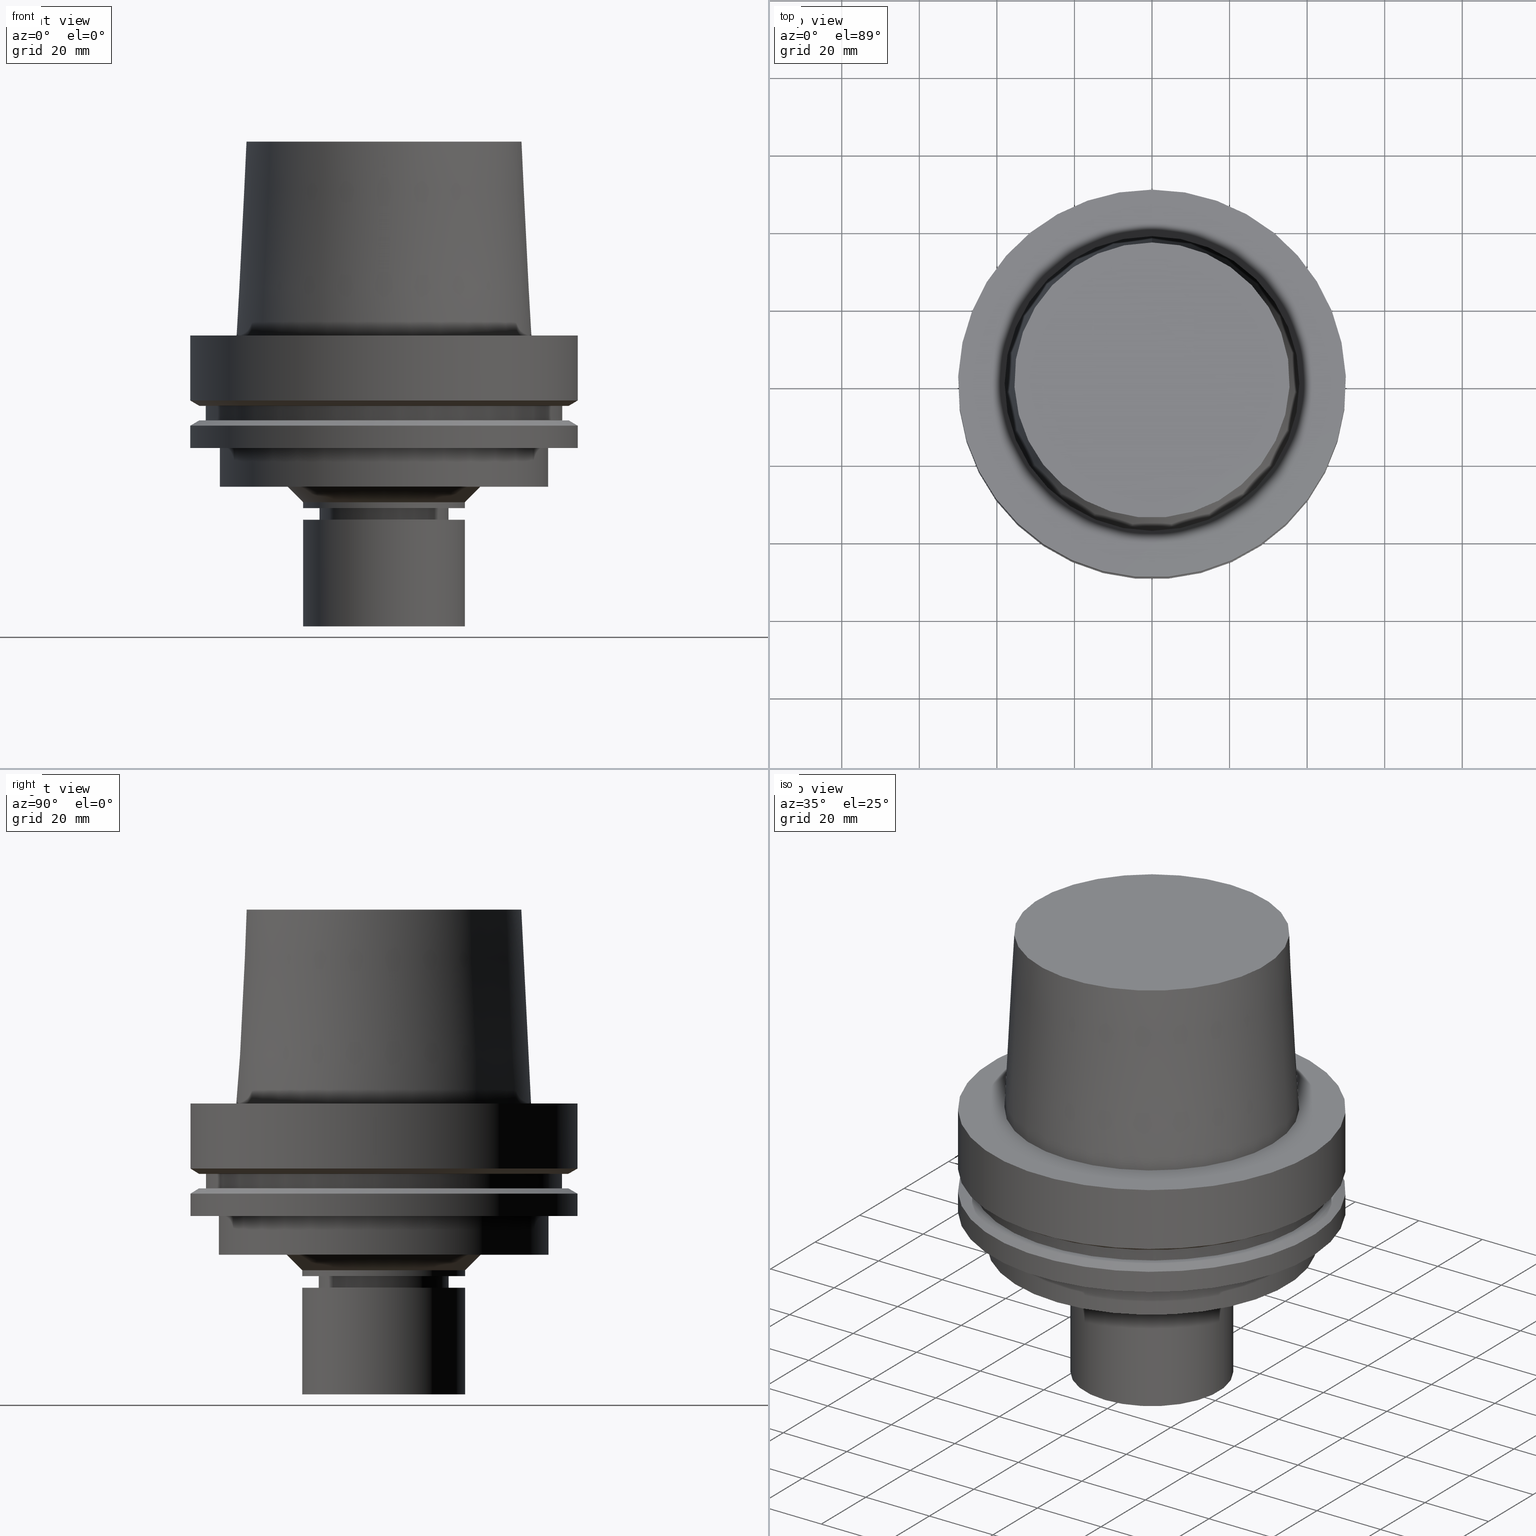
[diagram: canonical four-view strip — front | top / right | iso, engineering-drawing reading convention]
A machine part, canonical four-view strip (front | top / right | iso — engineering-drawing reading convention). The complete STEP part file that produces these views, byte-faithful:
ISO-10303-21;
HEADER;
FILE_DESCRIPTION((''),'1');
FILE_NAME('U:/Translate/02_3D_Field-HP\X2\FF71FF6FFF8CFF9F5916\X0\2013/02_Step_Field-HP\X2\FF71FF6FFF8CFF9F5916\X0\2013/HSK-A100-MEGAER25-75NL.stp','2016-06-22T01:22:53',(''),(''),'Spatial Interop R21 SP3','Kubotek KeyCreator 2011 V10.0.2 (22737)',' ');
FILE_SCHEMA(('automotive_design'));
ENDSEC;
DATA;
#1=MECHANICAL_DESIGN_GEOMETRIC_PRESENTATION_REPRESENTATION(' ',(#14,#15,#16,#17,#18,#19,#20,#21,#22,#23,#24,#25,#26,#27,#28,#29,#30,#31,#32,#33,#34,#35,#36,#37,#38,#39,#40,#41,#42,#43,#44,#45,#46,#47,#48,#49,#50,#51,#52,#53,#54,#55,#56,#57,#58,#59,#60,#61),#10);
#2=PRODUCT_DEFINITION_CONTEXT('',#62,'design');
#3=APPLICATION_PROTOCOL_DEFINITION('INTERNATIONAL STANDARD','automotive_design',1994,#62);
#4=PRODUCT_CATEGORY_RELATIONSHIP('NONE','NONE',#63,#64);
#5=SHAPE_DEFINITION_REPRESENTATION(#65,#66);
#6=PRODUCT_DEFINITION_CONTEXT('',#67,'design');
#7=APPLICATION_PROTOCOL_DEFINITION('INTERNATIONAL STANDARD','automotive_design',1994,#67);
#8=PRODUCT_CATEGORY_RELATIONSHIP('NONE','NONE',#68,#69);
#9=SHAPE_DEFINITION_REPRESENTATION(#70,#71);
#10= (GEOMETRIC_REPRESENTATION_CONTEXT(3)GLOBAL_UNCERTAINTY_ASSIGNED_CONTEXT((#74))GLOBAL_UNIT_ASSIGNED_CONTEXT((#76,#77,#78))REPRESENTATION_CONTEXT('NONE','WORKSPACE'));
#14=STYLED_ITEM('',(#80),#81);
#15=STYLED_ITEM('',(#82),#83);
#16=STYLED_ITEM('',(#84,#85),#86);
#17=STYLED_ITEM('',(#87,#88),#89);
#18=STYLED_ITEM('',(#90),#91);
#19=STYLED_ITEM('',(#92),#93);
#20=STYLED_ITEM('',(#94),#95);
#21=STYLED_ITEM('',(#96),#97);
#22=STYLED_ITEM('',(#98,#99),#100);
#23=STYLED_ITEM('',(#101),#102);
#24=STYLED_ITEM('',(#103),#104);
#25=STYLED_ITEM('',(#105),#106);
#26=STYLED_ITEM('',(#107),#108);
#27=STYLED_ITEM('',(#109,#110),#111);
#28=STYLED_ITEM('',(#112),#113);
#29=STYLED_ITEM('',(#114,#115),#116);
#30=STYLED_ITEM('',(#117,#118),#119);
#31=STYLED_ITEM('',(#120,#121),#122);
#32=STYLED_ITEM('',(#123),#124);
#33=STYLED_ITEM('',(#125,#126),#127);
#34=STYLED_ITEM('',(#128),#129);
#35=STYLED_ITEM('',(#130,#131),#132);
#36=STYLED_ITEM('',(#133,#134),#135);
#37=STYLED_ITEM('',(#136,#137),#138);
#38=STYLED_ITEM('',(#139,#140),#141);
#39=STYLED_ITEM('',(#142,#143),#144);
#40=STYLED_ITEM('',(#145,#146),#147);
#41=STYLED_ITEM('',(#148),#149);
#42=STYLED_ITEM('',(#150),#151);
#43=STYLED_ITEM('',(#152),#153);
#44=STYLED_ITEM('',(#154,#155),#156);
#45=STYLED_ITEM('',(#157),#158);
#46=STYLED_ITEM('',(#159,#160),#161);
#47=STYLED_ITEM('',(#162,#163),#164);
#48=STYLED_ITEM('',(#165),#166);
#49=STYLED_ITEM('',(#167),#168);
#50=STYLED_ITEM('',(#169),#170);
#51=STYLED_ITEM('',(#171),#172);
#52=STYLED_ITEM('',(#173,#174),#175);
#53=STYLED_ITEM('',(#176),#177);
#54=STYLED_ITEM('',(#178,#179),#180);
#55=STYLED_ITEM('',(#181,#182),#183);
#56=STYLED_ITEM('',(#184,#185),#186);
#57=STYLED_ITEM('',(#187,#188),#189);
#58=STYLED_ITEM('',(#190,#191),#192);
#59=STYLED_ITEM('',(#193,#194),#195);
#60=STYLED_ITEM('',(#196,#197),#198);
#61=STYLED_ITEM('',(#199,#200),#201);
#62=APPLICATION_CONTEXT(' ');
#63=PRODUCT_CATEGORY('part','NONE');
#64=PRODUCT_RELATED_PRODUCT_CATEGORY('detail',' ',(#202));
#65=PRODUCT_DEFINITION_SHAPE('NONE','NONE',#203);
#66=ADVANCED_BREP_SHAPE_REPRESENTATION('Unnamed[1]',(#180,#204),#10);
#67=APPLICATION_CONTEXT(' ');
#68=PRODUCT_CATEGORY('part','NONE');
#69=PRODUCT_RELATED_PRODUCT_CATEGORY('detail',' ',(#205));
#70=PRODUCT_DEFINITION_SHAPE('NONE','NONE',#206);
#71=ADVANCED_BREP_SHAPE_REPRESENTATION('Unnamed[1]',(#111,#207),#10);
#74=UNCERTAINTY_MEASURE_WITH_UNIT(LENGTH_MEASURE(1.0E-006),#76,'','');
#76= (CONVERSION_BASED_UNIT('MILLIMETRE',#210)LENGTH_UNIT()NAMED_UNIT(#213));
#77= (NAMED_UNIT(#215)PLANE_ANGLE_UNIT()SI_UNIT($,.RADIAN.));
#78= (NAMED_UNIT(#215)SOLID_ANGLE_UNIT()SI_UNIT($,.STERADIAN.));
#80=PRESENTATION_STYLE_ASSIGNMENT((#221));
#81=EDGE_CURVE('Unnamed[1]',#222,#222,#223,.T.);
#82=PRESENTATION_STYLE_ASSIGNMENT((#224));
#83=EDGE_CURVE('Unnamed[1]',#225,#225,#226,.T.);
#84=PRESENTATION_STYLE_ASSIGNMENT((#227));
#85=PRESENTATION_STYLE_ASSIGNMENT((#228));
#86=ADVANCED_FACE('Unnamed[1]',(#229),#230,.T.);
#87=PRESENTATION_STYLE_ASSIGNMENT((#231));
#88=PRESENTATION_STYLE_ASSIGNMENT((#232));
#89=ADVANCED_FACE('Unnamed[1]',(#233,#234),#235,.T.);
#90=PRESENTATION_STYLE_ASSIGNMENT((#236));
#91=EDGE_CURVE('Unnamed[1]',#237,#237,#238,.T.);
#92=PRESENTATION_STYLE_ASSIGNMENT((#239));
#93=EDGE_CURVE('Unnamed[1]',#240,#240,#241,.T.);
#94=PRESENTATION_STYLE_ASSIGNMENT((#242));
#95=EDGE_CURVE('Unnamed[1]',#243,#243,#244,.T.);
#96=PRESENTATION_STYLE_ASSIGNMENT((#245));
#97=EDGE_CURVE('Unnamed[1]',#246,#246,#247,.T.);
#98=PRESENTATION_STYLE_ASSIGNMENT((#248));
#99=PRESENTATION_STYLE_ASSIGNMENT((#249));
#100=ADVANCED_FACE('Unnamed[1]',(#250,#251),#252,.T.);
#101=PRESENTATION_STYLE_ASSIGNMENT((#253));
#102=EDGE_CURVE('Unnamed[1]',#254,#254,#255,.T.);
#103=PRESENTATION_STYLE_ASSIGNMENT((#256));
#104=EDGE_CURVE('Unnamed[1]',#257,#257,#258,.T.);
#105=PRESENTATION_STYLE_ASSIGNMENT((#259));
#106=EDGE_CURVE('Unnamed[1]',#260,#260,#261,.T.);
#107=PRESENTATION_STYLE_ASSIGNMENT((#262));
#108=EDGE_CURVE('Unnamed[1]',#263,#263,#264,.T.);
#109=PRESENTATION_STYLE_ASSIGNMENT((#265));
#110=PRESENTATION_STYLE_ASSIGNMENT((#266));
#111=MANIFOLD_SOLID_BREP('Unnamed[1]',#267);
#112=PRESENTATION_STYLE_ASSIGNMENT((#268));
#113=EDGE_CURVE('Unnamed[1]',#269,#269,#270,.T.);
#114=PRESENTATION_STYLE_ASSIGNMENT((#271));
#115=PRESENTATION_STYLE_ASSIGNMENT((#272));
#116=ADVANCED_FACE('Unnamed[1]',(#273,#274),#275,.T.);
#117=PRESENTATION_STYLE_ASSIGNMENT((#276));
#118=PRESENTATION_STYLE_ASSIGNMENT((#277));
#119=ADVANCED_FACE('Unnamed[1]',(#278,#279),#280,.T.);
#120=PRESENTATION_STYLE_ASSIGNMENT((#281));
#121=PRESENTATION_STYLE_ASSIGNMENT((#282));
#122=ADVANCED_FACE('Unnamed[1]',(#283),#284,.T.);
#123=PRESENTATION_STYLE_ASSIGNMENT((#285));
#124=EDGE_CURVE('Unnamed[1]',#286,#286,#287,.T.);
#125=PRESENTATION_STYLE_ASSIGNMENT((#288));
#126=PRESENTATION_STYLE_ASSIGNMENT((#289));
#127=ADVANCED_FACE('Unnamed[1]',(#290,#291),#292,.T.);
#128=PRESENTATION_STYLE_ASSIGNMENT((#293));
#129=EDGE_CURVE('Unnamed[1]',#294,#294,#295,.T.);
#130=PRESENTATION_STYLE_ASSIGNMENT((#296));
#131=PRESENTATION_STYLE_ASSIGNMENT((#297));
#132=ADVANCED_FACE('Unnamed[1]',(#298),#299,.T.);
#133=PRESENTATION_STYLE_ASSIGNMENT((#300));
#134=PRESENTATION_STYLE_ASSIGNMENT((#301));
#135=ADVANCED_FACE('Unnamed[1]',(#302,#303),#304,.T.);
#136=PRESENTATION_STYLE_ASSIGNMENT((#305));
#137=PRESENTATION_STYLE_ASSIGNMENT((#306));
#138=ADVANCED_FACE('Unnamed[1]',(#307,#308),#309,.T.);
#139=PRESENTATION_STYLE_ASSIGNMENT((#310));
#140=PRESENTATION_STYLE_ASSIGNMENT((#311));
#141=ADVANCED_FACE('Unnamed[1]',(#312,#313),#314,.T.);
#142=PRESENTATION_STYLE_ASSIGNMENT((#315));
#143=PRESENTATION_STYLE_ASSIGNMENT((#316));
#144=ADVANCED_FACE('Unnamed[1]',(#317,#318),#319,.T.);
#145=PRESENTATION_STYLE_ASSIGNMENT((#320));
#146=PRESENTATION_STYLE_ASSIGNMENT((#321));
#147=ADVANCED_FACE('Unnamed[1]',(#322),#323,.T.);
#148=PRESENTATION_STYLE_ASSIGNMENT((#324));
#149=EDGE_CURVE('Unnamed[1]',#325,#325,#326,.T.);
#150=PRESENTATION_STYLE_ASSIGNMENT((#327));
#151=EDGE_CURVE('Unnamed[1]',#328,#328,#329,.T.);
#152=PRESENTATION_STYLE_ASSIGNMENT((#330));
#153=EDGE_CURVE('Unnamed[1]',#331,#331,#332,.T.);
#154=PRESENTATION_STYLE_ASSIGNMENT((#333));
#155=PRESENTATION_STYLE_ASSIGNMENT((#334));
#156=ADVANCED_FACE('Unnamed[1]',(#335,#336),#337,.T.);
#157=PRESENTATION_STYLE_ASSIGNMENT((#338));
#158=EDGE_CURVE('Unnamed[1]',#339,#339,#340,.T.);
#159=PRESENTATION_STYLE_ASSIGNMENT((#341));
#160=PRESENTATION_STYLE_ASSIGNMENT((#342));
#161=ADVANCED_FACE('Unnamed[1]',(#343,#344),#345,.T.);
#162=PRESENTATION_STYLE_ASSIGNMENT((#346));
#163=PRESENTATION_STYLE_ASSIGNMENT((#347));
#164=ADVANCED_FACE('Unnamed[1]',(#348,#349),#350,.T.);
#165=PRESENTATION_STYLE_ASSIGNMENT((#351));
#166=EDGE_CURVE('Unnamed[1]',#352,#352,#353,.T.);
#167=PRESENTATION_STYLE_ASSIGNMENT((#354));
#168=EDGE_CURVE('Unnamed[1]',#355,#355,#356,.T.);
#169=PRESENTATION_STYLE_ASSIGNMENT((#357));
#170=EDGE_CURVE('Unnamed[1]',#358,#358,#359,.T.);
#171=PRESENTATION_STYLE_ASSIGNMENT((#360));
#172=EDGE_CURVE('Unnamed[1]',#361,#361,#362,.T.);
#173=PRESENTATION_STYLE_ASSIGNMENT((#363));
#174=PRESENTATION_STYLE_ASSIGNMENT((#364));
#175=ADVANCED_FACE('Unnamed[1]',(#365,#366),#367,.T.);
#176=PRESENTATION_STYLE_ASSIGNMENT((#368));
#177=EDGE_CURVE('Unnamed[1]',#369,#369,#370,.T.);
#178=PRESENTATION_STYLE_ASSIGNMENT((#371));
#179=PRESENTATION_STYLE_ASSIGNMENT((#372));
#180=MANIFOLD_SOLID_BREP('Unnamed[1]',#373);
#181=PRESENTATION_STYLE_ASSIGNMENT((#374));
#182=PRESENTATION_STYLE_ASSIGNMENT((#375));
#183=ADVANCED_FACE('Unnamed[1]',(#376,#377),#378,.T.);
#184=PRESENTATION_STYLE_ASSIGNMENT((#379));
#185=PRESENTATION_STYLE_ASSIGNMENT((#380));
#186=ADVANCED_FACE('Unnamed[1]',(#381,#382),#383,.T.);
#187=PRESENTATION_STYLE_ASSIGNMENT((#384));
#188=PRESENTATION_STYLE_ASSIGNMENT((#385));
#189=ADVANCED_FACE('Unnamed[1]',(#386,#387),#388,.T.);
#190=PRESENTATION_STYLE_ASSIGNMENT((#389));
#191=PRESENTATION_STYLE_ASSIGNMENT((#390));
#192=ADVANCED_FACE('Unnamed[1]',(#391,#392),#393,.T.);
#193=PRESENTATION_STYLE_ASSIGNMENT((#394));
#194=PRESENTATION_STYLE_ASSIGNMENT((#395));
#195=ADVANCED_FACE('Unnamed[1]',(#396,#397),#398,.T.);
#196=PRESENTATION_STYLE_ASSIGNMENT((#399));
#197=PRESENTATION_STYLE_ASSIGNMENT((#400));
#198=ADVANCED_FACE('Unnamed[1]',(#401,#402),#403,.T.);
#199=PRESENTATION_STYLE_ASSIGNMENT((#404));
#200=PRESENTATION_STYLE_ASSIGNMENT((#405));
#201=ADVANCED_FACE('Unnamed[1]',(#406,#407),#408,.T.);
#202=PRODUCT('Unnamed[1]','Unnamed[1]','PART-Unnamed[1]-DESC',(#409));
#203=PRODUCT_DEFINITION('NONE','NONE',#410,#2);
#204=AXIS2_PLACEMENT_3D('',#411,#412,#413);
#205=PRODUCT('Unnamed[1]','Unnamed[1]','PART-Unnamed[1]-DESC',(#414));
#206=PRODUCT_DEFINITION('NONE','NONE',#415,#6);
#207=AXIS2_PLACEMENT_3D('',#416,#417,#418);
#210=LENGTH_MEASURE_WITH_UNIT(LENGTH_MEASURE(1.0),#419);
#213=DIMENSIONAL_EXPONENTS(1.0,0.0,0.0,0.0,0.0,0.0,0.0);
#215=DIMENSIONAL_EXPONENTS(0.0,0.0,0.0,0.0,0.0,0.0,0.0);
#221=CURVE_STYLE('',#420,POSITIVE_LENGTH_MEASURE(1000.0),#421);
#222=VERTEX_POINT('',#422);
#223=CIRCLE('',#423,25.0);
#224=CURVE_STYLE('',#424,POSITIVE_LENGTH_MEASURE(1000.0),#425);
#225=VERTEX_POINT('',#426);
#226=CIRCLE('',#427,50.0);
#227=SURFACE_STYLE_USAGE(.BOTH.,#428);
#228=CURVE_STYLE('',#429,POSITIVE_LENGTH_MEASURE(1000.0),#430);
#229=FACE_OUTER_BOUND('',#431,.T.);
#230=PLANE('',#432);
#231=SURFACE_STYLE_USAGE(.BOTH.,#433);
#232=CURVE_STYLE('',#434,POSITIVE_LENGTH_MEASURE(1000.0),#435);
#233=FACE_BOUND('',#436,.T.);
#234=FACE_BOUND('',#437,.T.);
#235=CONICAL_SURFACE('',#438,16.3750000000008,0.846178977409382);
#236=CURVE_STYLE('',#439,POSITIVE_LENGTH_MEASURE(1000.0),#440);
#237=VERTEX_POINT('',#441);
#238=CIRCLE('',#442,50.0);
#239=CURVE_STYLE('',#443,POSITIVE_LENGTH_MEASURE(1000.0),#444);
#240=VERTEX_POINT('',#445);
#241=CIRCLE('',#446,50.0);
#242=CURVE_STYLE('',#447,POSITIVE_LENGTH_MEASURE(1000.0),#448);
#243=VERTEX_POINT('',#449);
#244=CIRCLE('',#450,21.0);
#245=CURVE_STYLE('',#451,POSITIVE_LENGTH_MEASURE(1000.0),#452);
#246=VERTEX_POINT('',#453);
#247=CIRCLE('',#454,21.0);
#248=SURFACE_STYLE_USAGE(.BOTH.,#455);
#249=CURVE_STYLE('',#456,POSITIVE_LENGTH_MEASURE(1000.0),#457);
#250=FACE_OUTER_BOUND('',#458,.T.);
#251=FACE_BOUND('',#459,.T.);
#252=PLANE('',#460);
#253=CURVE_STYLE('',#461,POSITIVE_LENGTH_MEASURE(1000.0),#462);
#254=VERTEX_POINT('',#463);
#255=CIRCLE('',#464,50.0);
#256=CURVE_STYLE('',#465,POSITIVE_LENGTH_MEASURE(1000.0),#466);
#257=VERTEX_POINT('',#467);
#258=CIRCLE('',#468,16.0);
#259=CURVE_STYLE('',#469,POSITIVE_LENGTH_MEASURE(1000.0),#470);
#260=VERTEX_POINT('',#471);
#261=CIRCLE('',#472,16.7500000000017);
#262=CURVE_STYLE('',#473,POSITIVE_LENGTH_MEASURE(1000.0),#474);
#263=VERTEX_POINT('',#475);
#264=CIRCLE('',#476,21.0);
#265=SURFACE_STYLE_USAGE(.BOTH.,#477);
#266=CURVE_STYLE('',#478,POSITIVE_LENGTH_MEASURE(1000.0),#479);
#267=CLOSED_SHELL('',(#147,#132,#135));
#268=CURVE_STYLE('',#480,POSITIVE_LENGTH_MEASURE(1000.0),#481);
#269=VERTEX_POINT('',#482);
#270=CIRCLE('',#483,37.9999999999349);
#271=SURFACE_STYLE_USAGE(.BOTH.,#484);
#272=CURVE_STYLE('',#485,POSITIVE_LENGTH_MEASURE(1000.0),#486);
#273=FACE_BOUND('',#487,.T.);
#274=FACE_BOUND('',#488,.T.);
#275=CONICAL_SURFACE('',#489,48.81129763,1.04719755328238);
#276=SURFACE_STYLE_USAGE(.BOTH.,#490);
#277=CURVE_STYLE('',#491,POSITIVE_LENGTH_MEASURE(1000.0),#492);
#278=FACE_BOUND('',#493,.T.);
#279=FACE_BOUND('',#494,.T.);
#280=CONICAL_SURFACE('',#495,23.0,0.785398163397449);
#281=SURFACE_STYLE_USAGE(.BOTH.,#496);
#282=CURVE_STYLE('',#497,POSITIVE_LENGTH_MEASURE(1000.0),#498);
#283=FACE_OUTER_BOUND('',#499,.T.);
#284=PLANE('',#500);
#285=CURVE_STYLE('',#501,POSITIVE_LENGTH_MEASURE(1000.0),#502);
#286=VERTEX_POINT('',#503);
#287=CIRCLE('',#504,42.5);
#288=SURFACE_STYLE_USAGE(.BOTH.,#505);
#289=CURVE_STYLE('',#506,POSITIVE_LENGTH_MEASURE(1000.0),#507);
#290=FACE_BOUND('',#508,.T.);
#291=FACE_OUTER_BOUND('',#509,.T.);
#292=PLANE('',#510);
#293=CURVE_STYLE('',#511,POSITIVE_LENGTH_MEASURE(1000.0),#512);
#294=VERTEX_POINT('',#513);
#295=CIRCLE('',#514,14.9000000000006);
#296=SURFACE_STYLE_USAGE(.BOTH.,#515);
#297=CURVE_STYLE('',#516,POSITIVE_LENGTH_MEASURE(1000.0),#517);
#298=FACE_OUTER_BOUND('',#518,.T.);
#299=PLANE('',#519);
#300=SURFACE_STYLE_USAGE(.BOTH.,#520);
#301=CURVE_STYLE('',#521,POSITIVE_LENGTH_MEASURE(1000.0),#522);
#302=FACE_BOUND('',#523,.T.);
#303=FACE_BOUND('',#524,.T.);
#304=CYLINDRICAL_SURFACE('',#525,21.0);
#305=SURFACE_STYLE_USAGE(.BOTH.,#526);
#306=CURVE_STYLE('',#527,POSITIVE_LENGTH_MEASURE(1000.0),#528);
#307=FACE_BOUND('',#529,.T.);
#308=FACE_BOUND('',#530,.T.);
#309=CYLINDRICAL_SURFACE('',#531,50.0);
#310=SURFACE_STYLE_USAGE(.BOTH.,#532);
#311=CURVE_STYLE('',#533,POSITIVE_LENGTH_MEASURE(1000.0),#534);
#312=FACE_BOUND('',#535,.T.);
#313=FACE_BOUND('',#536,.T.);
#314=CONICAL_SURFACE('',#537,48.81129763,1.04719755328238);
#315=SURFACE_STYLE_USAGE(.BOTH.,#538);
#316=CURVE_STYLE('',#539,POSITIVE_LENGTH_MEASURE(1000.0),#540);
#317=FACE_BOUND('',#541,.T.);
#318=FACE_BOUND('',#542,.T.);
#319=CYLINDRICAL_SURFACE('',#543,42.5);
#320=SURFACE_STYLE_USAGE(.BOTH.,#544);
#321=CURVE_STYLE('',#545,POSITIVE_LENGTH_MEASURE(1000.0),#546);
#322=FACE_OUTER_BOUND('',#547,.T.);
#323=PLANE('',#548);
#324=CURVE_STYLE('',#549,POSITIVE_LENGTH_MEASURE(1000.0),#550);
#325=VERTEX_POINT('',#551);
#326=CIRCLE('',#552,21.0);
#327=CURVE_STYLE('',#553,POSITIVE_LENGTH_MEASURE(1000.0),#554);
#328=VERTEX_POINT('',#555);
#329=CIRCLE('',#556,16.0);
#330=CURVE_STYLE('',#557,POSITIVE_LENGTH_MEASURE(1000.0),#558);
#331=VERTEX_POINT('',#559);
#332=CIRCLE('',#560,46.0);
#333=SURFACE_STYLE_USAGE(.BOTH.,#561);
#334=CURVE_STYLE('',#562,POSITIVE_LENGTH_MEASURE(1000.0),#563);
#335=FACE_BOUND('',#564,.T.);
#336=FACE_BOUND('',#565,.T.);
#337=CYLINDRICAL_SURFACE('',#566,50.0);
#338=CURVE_STYLE('',#567,POSITIVE_LENGTH_MEASURE(1000.0),#568);
#339=VERTEX_POINT('',#569);
#340=CIRCLE('',#570,47.62259526);
#341=SURFACE_STYLE_USAGE(.BOTH.,#571);
#342=CURVE_STYLE('',#572,POSITIVE_LENGTH_MEASURE(1000.0),#573);
#343=FACE_BOUND('',#574,.T.);
#344=FACE_BOUND('',#575,.T.);
#345=CYLINDRICAL_SURFACE('',#576,46.0);
#346=SURFACE_STYLE_USAGE(.BOTH.,#577);
#347=CURVE_STYLE('',#578,POSITIVE_LENGTH_MEASURE(1000.0),#579);
#348=FACE_BOUND('',#580,.T.);
#349=FACE_BOUND('',#581,.T.);
#350=CYLINDRICAL_SURFACE('',#582,16.0);
#351=CURVE_STYLE('',#583,POSITIVE_LENGTH_MEASURE(1000.0),#584);
#352=VERTEX_POINT('',#585);
#353=CIRCLE('',#586,35.5000000015618);
#354=CURVE_STYLE('',#587,POSITIVE_LENGTH_MEASURE(1000.0),#588);
#355=VERTEX_POINT('',#589);
#356=CIRCLE('',#590,42.5);
#357=CURVE_STYLE('',#591,POSITIVE_LENGTH_MEASURE(1000.0),#592);
#358=VERTEX_POINT('',#593);
#359=CIRCLE('',#594,16.7499999999907);
#360=CURVE_STYLE('',#595,POSITIVE_LENGTH_MEASURE(1000.0),#596);
#361=VERTEX_POINT('',#597);
#362=CIRCLE('',#598,47.62259526);
#363=SURFACE_STYLE_USAGE(.BOTH.,#599);
#364=CURVE_STYLE('',#600,POSITIVE_LENGTH_MEASURE(1000.0),#601);
#365=FACE_BOUND('',#602,.T.);
#366=FACE_BOUND('',#603,.T.);
#367=CYLINDRICAL_SURFACE('',#604,21.0);
#368=CURVE_STYLE('',#605,POSITIVE_LENGTH_MEASURE(1000.0),#606);
#369=VERTEX_POINT('',#607);
#370=CIRCLE('',#608,46.0);
#371=SURFACE_STYLE_USAGE(.BOTH.,#609);
#372=CURVE_STYLE('',#610,POSITIVE_LENGTH_MEASURE(1000.0),#611);
#373=CLOSED_SHELL('',(#122,#186,#183,#138,#141,#127,#161,#100,#116,#156,#189,#144,#201,#119,#175,#192,#198,#89,#164,#195,#86));
#374=SURFACE_STYLE_USAGE(.BOTH.,#612);
#375=CURVE_STYLE('',#613,POSITIVE_LENGTH_MEASURE(1000.0),#614);
#376=FACE_OUTER_BOUND('',#615,.T.);
#377=FACE_BOUND('',#616,.T.);
#378=PLANE('',#617);
#379=SURFACE_STYLE_USAGE(.BOTH.,#618);
#380=CURVE_STYLE('',#619,POSITIVE_LENGTH_MEASURE(1000.0),#620);
#381=FACE_BOUND('',#621,.T.);
#382=FACE_BOUND('',#622,.T.);
#383=CONICAL_SURFACE('',#623,36.7500000007484,0.0499583956894843);
#384=SURFACE_STYLE_USAGE(.BOTH.,#624);
#385=CURVE_STYLE('',#625,POSITIVE_LENGTH_MEASURE(1000.0),#626);
#386=FACE_BOUND('',#627,.T.);
#387=FACE_OUTER_BOUND('',#628,.T.);
#388=PLANE('',#629);
#389=SURFACE_STYLE_USAGE(.BOTH.,#630);
#390=CURVE_STYLE('',#631,POSITIVE_LENGTH_MEASURE(1000.0),#632);
#391=FACE_BOUND('',#633,.T.);
#392=FACE_OUTER_BOUND('',#634,.T.);
#393=PLANE('',#635);
#394=SURFACE_STYLE_USAGE(.BOTH.,#636);
#395=CURVE_STYLE('',#637,POSITIVE_LENGTH_MEASURE(1000.0),#638);
#396=FACE_BOUND('',#639,.T.);
#397=FACE_BOUND('',#640,.T.);
#398=CONICAL_SURFACE('',#641,15.4500000000003,0.523598775598046);
#399=SURFACE_STYLE_USAGE(.BOTH.,#642);
#400=CURVE_STYLE('',#643,POSITIVE_LENGTH_MEASURE(1000.0),#644);
#401=FACE_BOUND('',#645,.T.);
#402=FACE_BOUND('',#646,.T.);
#403=CYLINDRICAL_SURFACE('',#647,16.7499999999962);
#404=SURFACE_STYLE_USAGE(.BOTH.,#648);
#405=CURVE_STYLE('',#649,POSITIVE_LENGTH_MEASURE(1000.0),#650);
#406=FACE_BOUND('',#651,.T.);
#407=FACE_OUTER_BOUND('',#652,.T.);
#408=PLANE('',#653);
#409=PRODUCT_CONTEXT('',#62,'mechanical');
#410=PRODUCT_DEFINITION_FORMATION_WITH_SPECIFIED_SOURCE(' ','NONE',#202,.NOT_KNOWN.);
#411=CARTESIAN_POINT('',(0.0,0.0,0.0));
#412=DIRECTION('',(0.0,0.0,1.0));
#413=DIRECTION('',(1.0,0.0,0.0));
#414=PRODUCT_CONTEXT('',#67,'mechanical');
#415=PRODUCT_DEFINITION_FORMATION_WITH_SPECIFIED_SOURCE(' ','NONE',#205,.NOT_KNOWN.);
#416=CARTESIAN_POINT('',(0.0,0.0,0.0));
#417=DIRECTION('',(0.0,0.0,1.0));
#418=DIRECTION('',(1.0,0.0,0.0));
#419= (NAMED_UNIT(#213)LENGTH_UNIT()SI_UNIT(.MILLI.,.METRE.));
#420=DRAUGHTING_PRE_DEFINED_CURVE_FONT('continuous');
#421=COLOUR_RGB('',0.0,1.0,0.0);
#422=CARTESIAN_POINT('',(2.38806125833734E-015,25.0,-39.0));
#423=AXIS2_PLACEMENT_3D('',#655,#656,#657);
#424=DRAUGHTING_PRE_DEFINED_CURVE_FONT('continuous');
#425=COLOUR_RGB('',0.0,1.0,0.0);
#426=CARTESIAN_POINT('',(1.77573785876366E-015,50.0,-29.0));
#427=AXIS2_PLACEMENT_3D('',#658,#659,#660);
#428=SURFACE_SIDE_STYLE('',(#661));
#429=DRAUGHTING_PRE_DEFINED_CURVE_FONT('continuous');
#430=COLOUR_RGB('',0.0,1.0,0.0);
#431=EDGE_LOOP('',(#662));
#432=AXIS2_PLACEMENT_3D('',#663,#664,#665);
#433=SURFACE_SIDE_STYLE('',(#666));
#434=DRAUGHTING_PRE_DEFINED_CURVE_FONT('continuous');
#435=COLOUR_RGB('',0.0,1.0,0.0);
#436=EDGE_LOOP('',(#667));
#437=EDGE_LOOP('',(#668));
#438=AXIS2_PLACEMENT_3D('',#669,#670,#671);
#439=DRAUGHTING_PRE_DEFINED_CURVE_FONT('continuous');
#440=COLOUR_RGB('',0.0,1.0,0.0);
#441=CARTESIAN_POINT('',(1.0257889421431E-015,50.0,-16.75240474));
#442=AXIS2_PLACEMENT_3D('',#672,#673,#674);
#443=DRAUGHTING_PRE_DEFINED_CURVE_FONT('continuous');
#444=COLOUR_RGB('',0.0,1.0,0.0);
#445=CARTESIAN_POINT('',(1.42350465615161E-015,50.0,-23.24759526));
#446=AXIS2_PLACEMENT_3D('',#675,#676,#677);
#447=DRAUGHTING_PRE_DEFINED_CURVE_FONT('continuous');
#448=COLOUR_RGB('',0.0,1.0,0.0);
#449=CARTESIAN_POINT('',(2.63299061816681E-015,21.0,-43.0));
#450=AXIS2_PLACEMENT_3D('',#678,#679,#680);
#451=DRAUGHTING_PRE_DEFINED_CURVE_FONT('continuous');
#452=COLOUR_RGB('',0.0,1.0,0.0);
#453=CARTESIAN_POINT('',(2.72483912810285E-015,21.0,-44.4999999999999));
#454=AXIS2_PLACEMENT_3D('',#681,#682,#683);
#455=SURFACE_SIDE_STYLE('',(#684));
#456=DRAUGHTING_PRE_DEFINED_CURVE_FONT('continuous');
#457=COLOUR_RGB('',0.0,1.0,0.0);
#458=EDGE_LOOP('',(#685));
#459=EDGE_LOOP('',(#686));
#460=AXIS2_PLACEMENT_3D('',#687,#688,#689);
#461=DRAUGHTING_PRE_DEFINED_CURVE_FONT('continuous');
#462=COLOUR_RGB('',0.0,1.0,0.0);
#463=CARTESIAN_POINT('',(-1.81547968506605E-031,50.0,-9.76766004263236E-016));
#464=AXIS2_PLACEMENT_3D('',#690,#691,#692);
#465=DRAUGHTING_PRE_DEFINED_CURVE_FONT('continuous');
#466=COLOUR_RGB('',0.0,1.0,0.0);
#467=CARTESIAN_POINT('',(3.85119235297769E-015,16.0,-62.8947441116744));
#468=AXIS2_PLACEMENT_3D('',#693,#694,#695);
#469=DRAUGHTING_PRE_DEFINED_CURVE_FONT('continuous');
#470=COLOUR_RGB('',0.0,1.0,0.0);
#471=CARTESIAN_POINT('',(3.09023239289714E-015,16.7500000000017,-50.4673248654009));
#472=AXIS2_PLACEMENT_3D('',#696,#697,#698);
#473=DRAUGHTING_PRE_DEFINED_CURVE_FONT('continuous');
#474=COLOUR_RGB('',0.0,1.0,0.0);
#475=CARTESIAN_POINT('',(4.59242549680257E-015,21.0,-75.0));
#476=AXIS2_PLACEMENT_3D('',#699,#700,#701);
#477=SURFACE_SIDE_STYLE('',(#702));
#478=DRAUGHTING_PRE_DEFINED_CURVE_FONT('continuous');
#479=COLOUR_RGB('',0.0,1.0,0.0);
#480=DRAUGHTING_PRE_DEFINED_CURVE_FONT('continuous');
#481=COLOUR_RGB('',0.0,1.0,0.0);
#482=CARTESIAN_POINT('',(-3.3636548776863E-032,37.9999999999349,-2.44634216324803E-015));
#483=AXIS2_PLACEMENT_3D('',#703,#704,#705);
#484=SURFACE_SIDE_STYLE('',(#706));
#485=DRAUGHTING_PRE_DEFINED_CURVE_FONT('continuous');
#486=COLOUR_RGB('',0.0,1.0,0.0);
#487=EDGE_LOOP('',(#707));
#488=EDGE_LOOP('',(#708));
#489=AXIS2_PLACEMENT_3D('',#709,#710,#711);
#490=SURFACE_SIDE_STYLE('',(#712));
#491=DRAUGHTING_PRE_DEFINED_CURVE_FONT('continuous');
#492=COLOUR_RGB('',0.0,1.0,0.0);
#493=EDGE_LOOP('',(#713));
#494=EDGE_LOOP('',(#714));
#495=AXIS2_PLACEMENT_3D('',#715,#716,#717);
#496=SURFACE_SIDE_STYLE('',(#718));
#497=DRAUGHTING_PRE_DEFINED_CURVE_FONT('continuous');
#498=COLOUR_RGB('',0.0,1.0,0.0);
#499=EDGE_LOOP('',(#719));
#500=AXIS2_PLACEMENT_3D('',#720,#721,#722);
#501=DRAUGHTING_PRE_DEFINED_CURVE_FONT('continuous');
#502=COLOUR_RGB('',0.0,1.0,0.0);
#503=CARTESIAN_POINT('',(1.77573785876366E-015,42.5,-29.0));
#504=AXIS2_PLACEMENT_3D('',#723,#724,#725);
#505=SURFACE_SIDE_STYLE('',(#726));
#506=DRAUGHTING_PRE_DEFINED_CURVE_FONT('continuous');
#507=COLOUR_RGB('',0.0,1.0,0.0);
#508=EDGE_LOOP('',(#727));
#509=EDGE_LOOP('',(#728));
#510=AXIS2_PLACEMENT_3D('',#729,#730,#731);
#511=DRAUGHTING_PRE_DEFINED_CURVE_FONT('continuous');
#512=COLOUR_RGB('',0.0,1.0,0.0);
#513=CARTESIAN_POINT('',(3.96785562923744E-015,14.9000000000006,-64.8000000000002));
#514=AXIS2_PLACEMENT_3D('',#732,#733,#734);
#515=SURFACE_SIDE_STYLE('',(#735));
#516=DRAUGHTING_PRE_DEFINED_CURVE_FONT('continuous');
#517=COLOUR_RGB('',0.0,1.0,0.0);
#518=EDGE_LOOP('',(#736));
#519=AXIS2_PLACEMENT_3D('',#737,#738,#739);
#520=SURFACE_SIDE_STYLE('',(#740));
#521=DRAUGHTING_PRE_DEFINED_CURVE_FONT('continuous');
#522=COLOUR_RGB('',0.0,1.0,0.0);
#523=EDGE_LOOP('',(#741));
#524=EDGE_LOOP('',(#742));
#525=AXIS2_PLACEMENT_3D('',#743,#744,#745);
#526=SURFACE_SIDE_STYLE('',(#746));
#527=DRAUGHTING_PRE_DEFINED_CURVE_FONT('continuous');
#528=COLOUR_RGB('',0.0,1.0,0.0);
#529=EDGE_LOOP('',(#747));
#530=EDGE_LOOP('',(#748));
#531=AXIS2_PLACEMENT_3D('',#749,#750,#751);
#532=SURFACE_SIDE_STYLE('',(#752));
#533=DRAUGHTING_PRE_DEFINED_CURVE_FONT('continuous');
#534=COLOUR_RGB('',0.0,1.0,0.0);
#535=EDGE_LOOP('',(#753));
#536=EDGE_LOOP('',(#754));
#537=AXIS2_PLACEMENT_3D('',#755,#756,#757);
#538=SURFACE_SIDE_STYLE('',(#758));
#539=DRAUGHTING_PRE_DEFINED_CURVE_FONT('continuous');
#540=COLOUR_RGB('',0.0,1.0,0.0);
#541=EDGE_LOOP('',(#759));
#542=EDGE_LOOP('',(#760));
#543=AXIS2_PLACEMENT_3D('',#761,#762,#763);
#544=SURFACE_SIDE_STYLE('',(#764));
#545=DRAUGHTING_PRE_DEFINED_CURVE_FONT('continuous');
#546=COLOUR_RGB('',0.0,1.0,0.0);
#547=EDGE_LOOP('',(#765));
#548=AXIS2_PLACEMENT_3D('',#766,#767,#768);
#549=DRAUGHTING_PRE_DEFINED_CURVE_FONT('continuous');
#550=COLOUR_RGB('',0.0,1.0,0.0);
#551=CARTESIAN_POINT('',(2.90853614797496E-015,21.0,-47.5));
#552=AXIS2_PLACEMENT_3D('',#769,#770,#771);
#553=DRAUGHTING_PRE_DEFINED_CURVE_FONT('continuous');
#554=COLOUR_RGB('',0.0,1.0,0.0);
#555=CARTESIAN_POINT('',(3.13088777704814E-015,16.0,-51.131277674967));
#556=AXIS2_PLACEMENT_3D('',#772,#773,#774);
#557=DRAUGHTING_PRE_DEFINED_CURVE_FONT('continuous');
#558=COLOUR_RGB('',0.0,1.0,0.0);
#559=CARTESIAN_POINT('',(1.10983616172729E-015,46.0,-18.125));
#560=AXIS2_PLACEMENT_3D('',#775,#776,#777);
#561=SURFACE_SIDE_STYLE('',(#778));
#562=DRAUGHTING_PRE_DEFINED_CURVE_FONT('continuous');
#563=COLOUR_RGB('',0.0,1.0,0.0);
#564=EDGE_LOOP('',(#779));
#565=EDGE_LOOP('',(#780));
#566=AXIS2_PLACEMENT_3D('',#781,#782,#783);
#567=DRAUGHTING_PRE_DEFINED_CURVE_FONT('continuous');
#568=COLOUR_RGB('',0.0,1.0,0.0);
#569=CARTESIAN_POINT('',(1.10983616172729E-015,47.62259526,-18.125));
#570=AXIS2_PLACEMENT_3D('',#784,#785,#786);
#571=SURFACE_SIDE_STYLE('',(#787));
#572=DRAUGHTING_PRE_DEFINED_CURVE_FONT('continuous');
#573=COLOUR_RGB('',0.0,1.0,0.0);
#574=EDGE_LOOP('',(#788));
#575=EDGE_LOOP('',(#789));
#576=AXIS2_PLACEMENT_3D('',#790,#791,#792);
#577=SURFACE_SIDE_STYLE('',(#793));
#578=DRAUGHTING_PRE_DEFINED_CURVE_FONT('continuous');
#579=COLOUR_RGB('',0.0,1.0,0.0);
#580=EDGE_LOOP('',(#794));
#581=EDGE_LOOP('',(#795));
#582=AXIS2_PLACEMENT_3D('',#796,#797,#798);
#583=DRAUGHTING_PRE_DEFINED_CURVE_FONT('continuous');
#584=COLOUR_RGB('',0.0,1.0,0.0);
#585=CARTESIAN_POINT('',(-3.06161699786838E-015,35.5000000015618,50.0));
#586=AXIS2_PLACEMENT_3D('',#799,#800,#801);
#587=DRAUGHTING_PRE_DEFINED_CURVE_FONT('continuous');
#588=COLOUR_RGB('',0.0,1.0,0.0);
#589=CARTESIAN_POINT('',(2.38806125833734E-015,42.5,-39.0));
#590=AXIS2_PLACEMENT_3D('',#802,#803,#804);
#591=DRAUGHTING_PRE_DEFINED_CURVE_FONT('continuous');
#592=COLOUR_RGB('',0.0,1.0,0.0);
#593=CARTESIAN_POINT('',(2.72483912810281E-015,16.7499999999907,-44.4999999999992));
#594=AXIS2_PLACEMENT_3D('',#805,#806,#807);
#595=DRAUGHTING_PRE_DEFINED_CURVE_FONT('continuous');
#596=COLOUR_RGB('',0.0,1.0,0.0);
#597=CARTESIAN_POINT('',(1.33945743656742E-015,47.62259526,-21.875));
#598=AXIS2_PLACEMENT_3D('',#808,#809,#810);
#599=SURFACE_SIDE_STYLE('',(#811));
#600=DRAUGHTING_PRE_DEFINED_CURVE_FONT('continuous');
#601=COLOUR_RGB('',0.0,1.0,0.0);
#602=EDGE_LOOP('',(#812));
#603=EDGE_LOOP('',(#813));
#604=AXIS2_PLACEMENT_3D('',#814,#815,#816);
#605=DRAUGHTING_PRE_DEFINED_CURVE_FONT('continuous');
#606=COLOUR_RGB('',0.0,1.0,0.0);
#607=CARTESIAN_POINT('',(1.33945743656742E-015,46.0,-21.875));
#608=AXIS2_PLACEMENT_3D('',#817,#818,#819);
#609=SURFACE_SIDE_STYLE('',(#820));
#610=DRAUGHTING_PRE_DEFINED_CURVE_FONT('continuous');
#611=COLOUR_RGB('',0.0,1.0,0.0);
#612=SURFACE_SIDE_STYLE('',(#821));
#613=DRAUGHTING_PRE_DEFINED_CURVE_FONT('continuous');
#614=COLOUR_RGB('',0.0,1.0,0.0);
#615=EDGE_LOOP('',(#822));
#616=EDGE_LOOP('',(#823));
#617=AXIS2_PLACEMENT_3D('',#824,#825,#826);
#618=SURFACE_SIDE_STYLE('',(#827));
#619=DRAUGHTING_PRE_DEFINED_CURVE_FONT('continuous');
#620=COLOUR_RGB('',0.0,1.0,0.0);
#621=EDGE_LOOP('',(#828));
#622=EDGE_LOOP('',(#829));
#623=AXIS2_PLACEMENT_3D('',#830,#831,#832);
#624=SURFACE_SIDE_STYLE('',(#833));
#625=DRAUGHTING_PRE_DEFINED_CURVE_FONT('continuous');
#626=COLOUR_RGB('',0.0,1.0,0.0);
#627=EDGE_LOOP('',(#834));
#628=EDGE_LOOP('',(#835));
#629=AXIS2_PLACEMENT_3D('',#836,#837,#838);
#630=SURFACE_SIDE_STYLE('',(#839));
#631=DRAUGHTING_PRE_DEFINED_CURVE_FONT('continuous');
#632=COLOUR_RGB('',0.0,1.0,0.0);
#633=EDGE_LOOP('',(#840));
#634=EDGE_LOOP('',(#841));
#635=AXIS2_PLACEMENT_3D('',#842,#843,#844);
#636=SURFACE_SIDE_STYLE('',(#845));
#637=DRAUGHTING_PRE_DEFINED_CURVE_FONT('continuous');
#638=COLOUR_RGB('',0.0,1.0,0.0);
#639=EDGE_LOOP('',(#846));
#640=EDGE_LOOP('',(#847));
#641=AXIS2_PLACEMENT_3D('',#848,#849,#850);
#642=SURFACE_SIDE_STYLE('',(#851));
#643=DRAUGHTING_PRE_DEFINED_CURVE_FONT('continuous');
#644=COLOUR_RGB('',0.0,1.0,0.0);
#645=EDGE_LOOP('',(#852));
#646=EDGE_LOOP('',(#853));
#647=AXIS2_PLACEMENT_3D('',#854,#855,#856);
#648=SURFACE_SIDE_STYLE('',(#857));
#649=DRAUGHTING_PRE_DEFINED_CURVE_FONT('continuous');
#650=COLOUR_RGB('',0.0,1.0,0.0);
#651=EDGE_LOOP('',(#858));
#652=EDGE_LOOP('',(#859));
#653=AXIS2_PLACEMENT_3D('',#860,#861,#862);
#655=CARTESIAN_POINT('',(2.38806125833734E-015,4.77612251667468E-015,-39.0));
#656=DIRECTION('',(6.12323399573677E-017,1.22464679914735E-016,-1.0));
#657=DIRECTION('',(-1.23259516440783E-032,1.0,1.22464679914735E-016));
#658=CARTESIAN_POINT('',(1.77573785876366E-015,3.55147571752733E-015,-29.0));
#659=DIRECTION('',(6.12323399573677E-017,1.22464679914735E-016,-1.0));
#660=DIRECTION('',(-1.23259516440783E-032,1.0,1.22464679914735E-016));
#661=SURFACE_STYLE_FILL_AREA(#863);
#662=ORIENTED_EDGE('',*,*,#129,.T.);
#663=CARTESIAN_POINT('',(3.96785562923742E-015,7.45000000000033,-64.8));
#664=DIRECTION('',(6.12323399573677E-017,-2.9443743116813E-014,-1.0));
#665=DIRECTION('',(1.79808213541533E-030,1.0,-2.9443743116813E-014));
#666=SURFACE_STYLE_FILL_AREA(#864);
#667=ORIENTED_EDGE('',*,*,#151,.F.);
#668=ORIENTED_EDGE('',*,*,#106,.T.);
#669=CARTESIAN_POINT('',(3.11056008497264E-015,6.22112016994529E-015,-50.799301270184));
#670=DIRECTION('',(-6.12323399573677E-017,-1.22464679914735E-016,1.0));
#671=DIRECTION('',(-1.23259516440783E-032,1.0,1.22464679914735E-016));
#672=CARTESIAN_POINT('',(1.0257889421431E-015,2.05157788428619E-015,-16.75240474));
#673=DIRECTION('',(6.12323399573677E-017,1.22464679914735E-016,-1.0));
#674=DIRECTION('',(-1.23259516440783E-032,1.0,1.22464679914735E-016));
#675=CARTESIAN_POINT('',(1.42350465615161E-015,2.84700931230322E-015,-23.24759526));
#676=DIRECTION('',(6.12323399573677E-017,1.22464679914735E-016,-1.0));
#677=DIRECTION('',(-1.23259516440783E-032,1.0,1.22464679914735E-016));
#678=CARTESIAN_POINT('',(2.63299061816681E-015,5.26598123633362E-015,-43.0));
#679=DIRECTION('',(6.12323399573677E-017,1.22464679914735E-016,-1.0));
#680=DIRECTION('',(-1.23259516440783E-032,1.0,1.22464679914735E-016));
#681=CARTESIAN_POINT('',(2.72483912810285E-015,5.44967825620571E-015,-44.4999999999999));
#682=DIRECTION('',(6.12323399573677E-017,1.22464679914735E-016,-1.0));
#683=DIRECTION('',(-1.23259516440783E-032,1.0,1.22464679914735E-016));
#684=SURFACE_STYLE_FILL_AREA(#865);
#685=ORIENTED_EDGE('',*,*,#172,.F.);
#686=ORIENTED_EDGE('',*,*,#177,.T.);
#687=CARTESIAN_POINT('',(1.33945743656742E-015,46.81129763,-21.875));
#688=DIRECTION('',(-6.12323399573677E-017,-1.22464679914735E-016,1.0));
#689=DIRECTION('',(1.23259516440783E-032,-1.0,-1.22464679914735E-016));
#690=CARTESIAN_POINT('',(0.0,0.0,0.0));
#691=DIRECTION('',(6.12323399573677E-017,1.22464679914735E-016,-1.0));
#692=DIRECTION('',(-1.23259516440783E-032,1.0,1.22464679914735E-016));
#693=CARTESIAN_POINT('',(3.85119235297769E-015,7.70238470595539E-015,-62.8947441116744));
#694=DIRECTION('',(6.12323399573677E-017,1.22464679914735E-016,-1.0));
#695=DIRECTION('',(-1.23259516440783E-032,1.0,1.22464679914735E-016));
#696=CARTESIAN_POINT('',(3.09023239289714E-015,6.18046478579429E-015,-50.4673248654009));
#697=DIRECTION('',(6.12323399573677E-017,1.22464679914735E-016,-1.0));
#698=DIRECTION('',(-1.23259516440783E-032,1.0,1.22464679914735E-016));
#699=CARTESIAN_POINT('',(4.59242549680257E-015,9.18485099360515E-015,-75.0));
#700=DIRECTION('',(6.12323399573677E-017,1.22464679914735E-016,-1.0));
#701=DIRECTION('',(-1.23259516440783E-032,1.0,1.22464679914735E-016));
#702=SURFACE_STYLE_FILL_AREA(#866);
#703=CARTESIAN_POINT('',(0.0,0.0,0.0));
#704=DIRECTION('',(6.12323399573677E-017,1.22464679914735E-016,-1.0));
#705=DIRECTION('',(-1.23259516440783E-032,1.0,1.22464679914735E-016));
#706=SURFACE_STYLE_FILL_AREA(#867);
#707=ORIENTED_EDGE('',*,*,#93,.F.);
#708=ORIENTED_EDGE('',*,*,#172,.T.);
#709=CARTESIAN_POINT('',(1.38148104635951E-015,2.76296209271903E-015,-22.56129763));
#710=DIRECTION('',(6.12323399573677E-017,1.22464679914735E-016,-1.0));
#711=DIRECTION('',(-1.23259516440783E-032,1.0,1.22464679914735E-016));
#712=SURFACE_STYLE_FILL_AREA(#868);
#713=ORIENTED_EDGE('',*,*,#95,.F.);
#714=ORIENTED_EDGE('',*,*,#81,.T.);
#715=CARTESIAN_POINT('',(2.51052593825207E-015,5.02105187650415E-015,-41.0));
#716=DIRECTION('',(-6.12323399573677E-017,-1.22464679914735E-016,1.0));
#717=DIRECTION('',(-1.23259516440783E-032,1.0,1.22464679914735E-016));
#718=SURFACE_STYLE_FILL_AREA(#869);
#719=ORIENTED_EDGE('',*,*,#166,.F.);
#720=CARTESIAN_POINT('',(-3.06161699786838E-015,17.7500000007809,50.0));
#721=DIRECTION('',(-6.12323399573677E-017,-1.22464679914735E-016,1.0));
#722=DIRECTION('',(1.23259516440783E-032,-1.0,-1.22464679914735E-016));
#723=CARTESIAN_POINT('',(1.77573785876366E-015,3.55147571752733E-015,-29.0));
#724=DIRECTION('',(6.12323399573677E-017,1.22464679914735E-016,-1.0));
#725=DIRECTION('',(-1.23259516440783E-032,1.0,1.22464679914735E-016));
#726=SURFACE_STYLE_FILL_AREA(#870);
#727=ORIENTED_EDGE('',*,*,#153,.F.);
#728=ORIENTED_EDGE('',*,*,#158,.T.);
#729=CARTESIAN_POINT('',(1.10983616172729E-015,46.81129763,-18.125));
#730=DIRECTION('',(6.12323399573677E-017,1.22464679914735E-016,-1.0));
#731=DIRECTION('',(-1.23259516440783E-032,1.0,1.22464679914735E-016));
#732=CARTESIAN_POINT('',(3.96785562923744E-015,7.93571125847487E-015,-64.8000000000002));
#733=DIRECTION('',(6.12323399573677E-017,1.22464679914735E-016,-1.0));
#734=DIRECTION('',(-1.23259516440783E-032,1.0,1.22464679914735E-016));
#735=SURFACE_STYLE_FILL_AREA(#871);
#736=ORIENTED_EDGE('',*,*,#149,.F.);
#737=CARTESIAN_POINT('',(2.90853614797496E-015,10.5,-47.5));
#738=DIRECTION('',(-6.12323399573677E-017,-1.22464679914735E-016,1.0));
#739=DIRECTION('',(1.23259516440783E-032,-1.0,-1.22464679914735E-016));
#740=SURFACE_STYLE_FILL_AREA(#872);
#741=ORIENTED_EDGE('',*,*,#108,.F.);
#742=ORIENTED_EDGE('',*,*,#149,.T.);
#743=CARTESIAN_POINT('',(3.75048082238877E-015,7.50096164477754E-015,-61.25));
#744=DIRECTION('',(6.12323399573677E-017,1.22464679914735E-016,-1.0));
#745=DIRECTION('',(-1.23259516440783E-032,1.0,1.22464679914735E-016));
#746=SURFACE_STYLE_FILL_AREA(#873);
#747=ORIENTED_EDGE('',*,*,#91,.F.);
#748=ORIENTED_EDGE('',*,*,#102,.T.);
#749=CARTESIAN_POINT('',(5.12894471071548E-016,1.0257889421431E-015,-8.37620236999999));
#750=DIRECTION('',(6.12323399573677E-017,1.22464679914735E-016,-1.0));
#751=DIRECTION('',(-1.23259516440783E-032,1.0,1.22464679914735E-016));
#752=SURFACE_STYLE_FILL_AREA(#874);
#753=ORIENTED_EDGE('',*,*,#158,.F.);
#754=ORIENTED_EDGE('',*,*,#91,.T.);
#755=CARTESIAN_POINT('',(1.06781255193519E-015,2.13562510387039E-015,-17.43870237));
#756=DIRECTION('',(-6.12323399573677E-017,-1.22464679914735E-016,1.0));
#757=DIRECTION('',(-1.23259516440783E-032,1.0,1.22464679914735E-016));
#758=SURFACE_STYLE_FILL_AREA(#875);
#759=ORIENTED_EDGE('',*,*,#168,.F.);
#760=ORIENTED_EDGE('',*,*,#124,.T.);
#761=CARTESIAN_POINT('',(2.0818995585505E-015,4.163799117101E-015,-34.0));
#762=DIRECTION('',(6.12323399573677E-017,1.22464679914735E-016,-1.0));
#763=DIRECTION('',(-1.23259516440783E-032,1.0,1.22464679914735E-016));
#764=SURFACE_STYLE_FILL_AREA(#876);
#765=ORIENTED_EDGE('',*,*,#108,.T.);
#766=CARTESIAN_POINT('',(4.59242549680257E-015,10.5,-75.0));
#767=DIRECTION('',(6.12323399573677E-017,1.22464679914735E-016,-1.0));
#768=DIRECTION('',(-1.23259516440783E-032,1.0,1.22464679914735E-016));
#769=CARTESIAN_POINT('',(2.90853614797496E-015,5.81707229594993E-015,-47.5));
#770=DIRECTION('',(6.12323399573677E-017,1.22464679914735E-016,-1.0));
#771=DIRECTION('',(-1.23259516440783E-032,1.0,1.22464679914735E-016));
#772=CARTESIAN_POINT('',(3.13088777704814E-015,6.26177555409629E-015,-51.131277674967));
#773=DIRECTION('',(6.12323399573677E-017,1.22464679914735E-016,-1.0));
#774=DIRECTION('',(-1.23259516440783E-032,1.0,1.22464679914735E-016));
#775=CARTESIAN_POINT('',(1.10983616172729E-015,2.21967232345458E-015,-18.125));
#776=DIRECTION('',(6.12323399573677E-017,1.22464679914735E-016,-1.0));
#777=DIRECTION('',(-1.23259516440783E-032,1.0,1.22464679914735E-016));
#778=SURFACE_STYLE_FILL_AREA(#877);
#779=ORIENTED_EDGE('',*,*,#83,.F.);
#780=ORIENTED_EDGE('',*,*,#93,.T.);
#781=CARTESIAN_POINT('',(1.59962125745764E-015,3.19924251491527E-015,-26.12379763));
#782=DIRECTION('',(6.12323399573677E-017,1.22464679914735E-016,-1.0));
#783=DIRECTION('',(-1.23259516440783E-032,1.0,1.22464679914735E-016));
#784=CARTESIAN_POINT('',(1.10983616172729E-015,2.21967232345458E-015,-18.125));
#785=DIRECTION('',(6.12323399573676E-017,1.22464679914735E-016,-1.0));
#786=DIRECTION('',(-1.23259516440783E-032,1.0,1.22464679914735E-016));
#787=SURFACE_STYLE_FILL_AREA(#878);
#788=ORIENTED_EDGE('',*,*,#177,.F.);
#789=ORIENTED_EDGE('',*,*,#153,.T.);
#790=CARTESIAN_POINT('',(1.22464679914735E-015,2.44929359829471E-015,-20.0));
#791=DIRECTION('',(6.12323399573677E-017,1.22464679914735E-016,-1.0));
#792=DIRECTION('',(-1.23259516440783E-032,1.0,1.22464679914735E-016));
#793=SURFACE_STYLE_FILL_AREA(#879);
#794=ORIENTED_EDGE('',*,*,#104,.F.);
#795=ORIENTED_EDGE('',*,*,#151,.T.);
#796=CARTESIAN_POINT('',(3.49104006501292E-015,6.98208013002584E-015,-57.0130108933207));
#797=DIRECTION('',(6.12323399573677E-017,1.22464679914735E-016,-1.0));
#798=DIRECTION('',(-1.23259516440783E-032,1.0,1.22464679914735E-016));
#799=CARTESIAN_POINT('',(-3.06161699786838E-015,-6.12323399573676E-015,50.0));
#800=DIRECTION('',(6.12323399573677E-017,1.22464679914735E-016,-1.0));
#801=DIRECTION('',(-1.23259516440783E-032,1.0,1.22464679914735E-016));
#802=CARTESIAN_POINT('',(2.38806125833734E-015,4.77612251667468E-015,-39.0));
#803=DIRECTION('',(6.12323399573677E-017,1.22464679914735E-016,-1.0));
#804=DIRECTION('',(-1.23259516440783E-032,1.0,1.22464679914735E-016));
#805=CARTESIAN_POINT('',(2.72483912810281E-015,5.44967825620562E-015,-44.4999999999992));
#806=DIRECTION('',(6.12323399573677E-017,1.22464679914735E-016,-1.0));
#807=DIRECTION('',(-1.23259516440783E-032,1.0,1.22464679914735E-016));
#808=CARTESIAN_POINT('',(1.33945743656742E-015,2.67891487313484E-015,-21.875));
#809=DIRECTION('',(6.12323399573676E-017,1.22464679914735E-016,-1.0));
#810=DIRECTION('',(-1.23259516440783E-032,1.0,1.22464679914735E-016));
#811=SURFACE_STYLE_FILL_AREA(#880);
#812=ORIENTED_EDGE('',*,*,#97,.F.);
#813=ORIENTED_EDGE('',*,*,#95,.T.);
#814=CARTESIAN_POINT('',(2.67891487313483E-015,5.35782974626966E-015,-43.75));
#815=DIRECTION('',(6.12323399573677E-017,1.22464679914735E-016,-1.0));
#816=DIRECTION('',(-1.23259516440783E-032,1.0,1.22464679914735E-016));
#817=CARTESIAN_POINT('',(1.33945743656742E-015,2.67891487313484E-015,-21.875));
#818=DIRECTION('',(6.12323399573677E-017,1.22464679914735E-016,-1.0));
#819=DIRECTION('',(-1.23259516440783E-032,1.0,1.22464679914735E-016));
#820=SURFACE_STYLE_FILL_AREA(#881);
#821=SURFACE_STYLE_FILL_AREA(#882);
#822=ORIENTED_EDGE('',*,*,#102,.F.);
#823=ORIENTED_EDGE('',*,*,#113,.T.);
#824=CARTESIAN_POINT('',(-1.07592258641734E-031,43.9999999999675,-1.71155408375563E-015));
#825=DIRECTION('',(-6.12323399573677E-017,-1.22464679914735E-016,1.0));
#826=DIRECTION('',(1.23259516440783E-032,-1.0,-1.22464679914735E-016));
#827=SURFACE_STYLE_FILL_AREA(#883);
#828=ORIENTED_EDGE('',*,*,#113,.F.);
#829=ORIENTED_EDGE('',*,*,#166,.T.);
#830=CARTESIAN_POINT('',(-1.53080849893419E-015,-3.06161699786838E-015,25.0));
#831=DIRECTION('',(6.12323399573676E-017,1.22464679914735E-016,-1.0));
#832=DIRECTION('',(-1.23259516440783E-032,1.0,1.22464679914735E-016));
#833=SURFACE_STYLE_FILL_AREA(#884);
#834=ORIENTED_EDGE('',*,*,#124,.F.);
#835=ORIENTED_EDGE('',*,*,#83,.T.);
#836=CARTESIAN_POINT('',(1.77573785876366E-015,46.25,-29.0));
#837=DIRECTION('',(6.12323399573677E-017,1.22464679914735E-016,-1.0));
#838=DIRECTION('',(-1.23259516440783E-032,1.0,1.22464679914735E-016));
#839=SURFACE_STYLE_FILL_AREA(#885);
#840=ORIENTED_EDGE('',*,*,#170,.F.);
#841=ORIENTED_EDGE('',*,*,#97,.T.);
#842=CARTESIAN_POINT('',(2.72483912810283E-015,18.8749999999954,-44.4999999999995));
#843=DIRECTION('',(6.12323399573677E-017,-1.65392196120312E-013,-1.0));
#844=DIRECTION('',(1.01225240264038E-029,1.0,-1.65392196120312E-013));
#845=SURFACE_STYLE_FILL_AREA(#886);
#846=ORIENTED_EDGE('',*,*,#129,.F.);
#847=ORIENTED_EDGE('',*,*,#104,.T.);
#848=CARTESIAN_POINT('',(3.90952399110757E-015,7.81904798221513E-015,-63.8473720558373));
#849=DIRECTION('',(-6.12323399573677E-017,-1.22464679914735E-016,1.0));
#850=DIRECTION('',(-1.23259516440783E-032,1.0,1.22464679914735E-016));
#851=SURFACE_STYLE_FILL_AREA(#887);
#852=ORIENTED_EDGE('',*,*,#106,.F.);
#853=ORIENTED_EDGE('',*,*,#170,.T.);
#854=CARTESIAN_POINT('',(2.90753576049998E-015,5.81507152099995E-015,-47.4836624327001));
#855=DIRECTION('',(6.12323399573676E-017,1.22464679914735E-016,-1.0));
#856=DIRECTION('',(-1.23259516440783E-032,1.0,1.22464679914735E-016));
#857=SURFACE_STYLE_FILL_AREA(#888);
#858=ORIENTED_EDGE('',*,*,#81,.F.);
#859=ORIENTED_EDGE('',*,*,#168,.T.);
#860=CARTESIAN_POINT('',(2.38806125833734E-015,33.75,-39.0));
#861=DIRECTION('',(6.12323399573677E-017,1.22464679914735E-016,-1.0));
#862=DIRECTION('',(-1.23259516440783E-032,1.0,1.22464679914735E-016));
#863=FILL_AREA_STYLE('',(#889));
#864=FILL_AREA_STYLE('',(#890));
#865=FILL_AREA_STYLE('',(#891));
#866=FILL_AREA_STYLE('',(#892));
#867=FILL_AREA_STYLE('',(#893));
#868=FILL_AREA_STYLE('',(#894));
#869=FILL_AREA_STYLE('',(#895));
#870=FILL_AREA_STYLE('',(#896));
#871=FILL_AREA_STYLE('',(#897));
#872=FILL_AREA_STYLE('',(#898));
#873=FILL_AREA_STYLE('',(#899));
#874=FILL_AREA_STYLE('',(#900));
#875=FILL_AREA_STYLE('',(#901));
#876=FILL_AREA_STYLE('',(#902));
#877=FILL_AREA_STYLE('',(#903));
#878=FILL_AREA_STYLE('',(#904));
#879=FILL_AREA_STYLE('',(#905));
#880=FILL_AREA_STYLE('',(#906));
#881=FILL_AREA_STYLE('',(#907));
#882=FILL_AREA_STYLE('',(#908));
#883=FILL_AREA_STYLE('',(#909));
#884=FILL_AREA_STYLE('',(#910));
#885=FILL_AREA_STYLE('',(#911));
#886=FILL_AREA_STYLE('',(#912));
#887=FILL_AREA_STYLE('',(#913));
#888=FILL_AREA_STYLE('',(#914));
#889=FILL_AREA_STYLE_COLOUR('',#915);
#890=FILL_AREA_STYLE_COLOUR('',#916);
#891=FILL_AREA_STYLE_COLOUR('',#917);
#892=FILL_AREA_STYLE_COLOUR('',#918);
#893=FILL_AREA_STYLE_COLOUR('',#919);
#894=FILL_AREA_STYLE_COLOUR('',#920);
#895=FILL_AREA_STYLE_COLOUR('',#921);
#896=FILL_AREA_STYLE_COLOUR('',#922);
#897=FILL_AREA_STYLE_COLOUR('',#923);
#898=FILL_AREA_STYLE_COLOUR('',#924);
#899=FILL_AREA_STYLE_COLOUR('',#925);
#900=FILL_AREA_STYLE_COLOUR('',#926);
#901=FILL_AREA_STYLE_COLOUR('',#927);
#902=FILL_AREA_STYLE_COLOUR('',#928);
#903=FILL_AREA_STYLE_COLOUR('',#929);
#904=FILL_AREA_STYLE_COLOUR('',#930);
#905=FILL_AREA_STYLE_COLOUR('',#931);
#906=FILL_AREA_STYLE_COLOUR('',#932);
#907=FILL_AREA_STYLE_COLOUR('',#933);
#908=FILL_AREA_STYLE_COLOUR('',#934);
#909=FILL_AREA_STYLE_COLOUR('',#935);
#910=FILL_AREA_STYLE_COLOUR('',#936);
#911=FILL_AREA_STYLE_COLOUR('',#937);
#912=FILL_AREA_STYLE_COLOUR('',#938);
#913=FILL_AREA_STYLE_COLOUR('',#939);
#914=FILL_AREA_STYLE_COLOUR('',#940);
#915=COLOUR_RGB('',0.0,1.0,0.0);
#916=COLOUR_RGB('',0.0,1.0,0.0);
#917=COLOUR_RGB('',0.0,1.0,0.0);
#918=COLOUR_RGB('',0.0,1.0,0.0);
#919=COLOUR_RGB('',0.0,1.0,0.0);
#920=COLOUR_RGB('',0.0,1.0,0.0);
#921=COLOUR_RGB('',0.0,1.0,0.0);
#922=COLOUR_RGB('',0.0,1.0,0.0);
#923=COLOUR_RGB('',0.0,1.0,0.0);
#924=COLOUR_RGB('',0.0,1.0,0.0);
#925=COLOUR_RGB('',0.0,1.0,0.0);
#926=COLOUR_RGB('',0.0,1.0,0.0);
#927=COLOUR_RGB('',0.0,1.0,0.0);
#928=COLOUR_RGB('',0.0,1.0,0.0);
#929=COLOUR_RGB('',0.0,1.0,0.0);
#930=COLOUR_RGB('',0.0,1.0,0.0);
#931=COLOUR_RGB('',0.0,1.0,0.0);
#932=COLOUR_RGB('',0.0,1.0,0.0);
#933=COLOUR_RGB('',0.0,1.0,0.0);
#934=COLOUR_RGB('',0.0,1.0,0.0);
#935=COLOUR_RGB('',0.0,1.0,0.0);
#936=COLOUR_RGB('',0.0,1.0,0.0);
#937=COLOUR_RGB('',0.0,1.0,0.0);
#938=COLOUR_RGB('',0.0,1.0,0.0);
#939=COLOUR_RGB('',0.0,1.0,0.0);
#940=COLOUR_RGB('',0.0,1.0,0.0);
ENDSEC;
END-ISO-10303-21;
